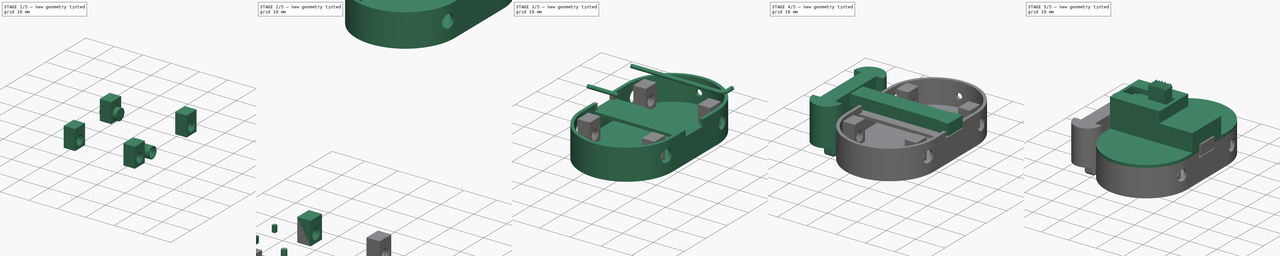
[diagram: build sequence overview — one tinted view per stage of 5, left to right]
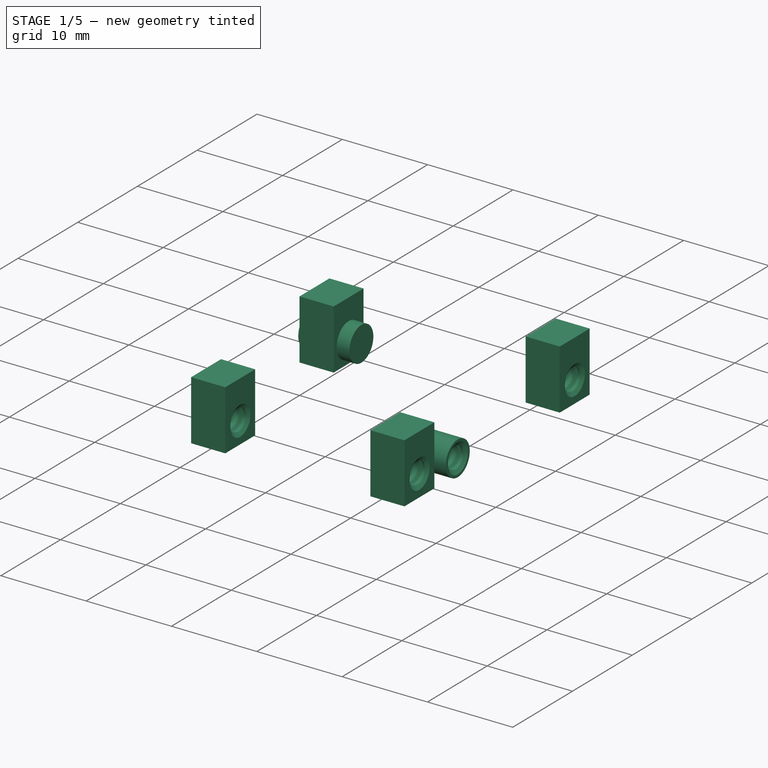
[diagram: stage 1 of 5 — iso view after this stage's code; geometry added in this stage tinted green]
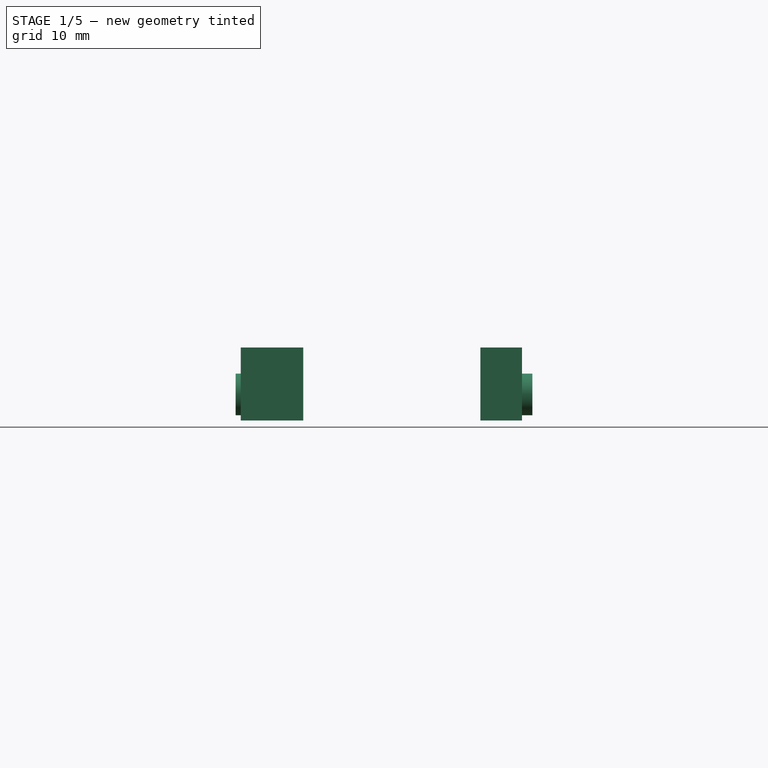
[diagram: stage 1 of 5 — front view after this stage's code; geometry added in this stage tinted green]
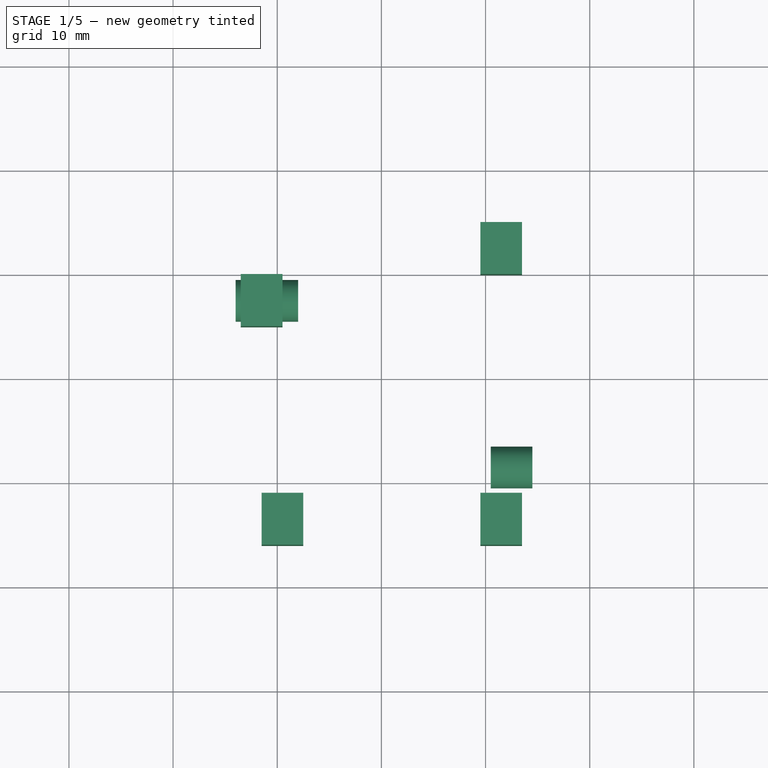
[diagram: stage 1 of 5 — top view after this stage's code; geometry added in this stage tinted green]
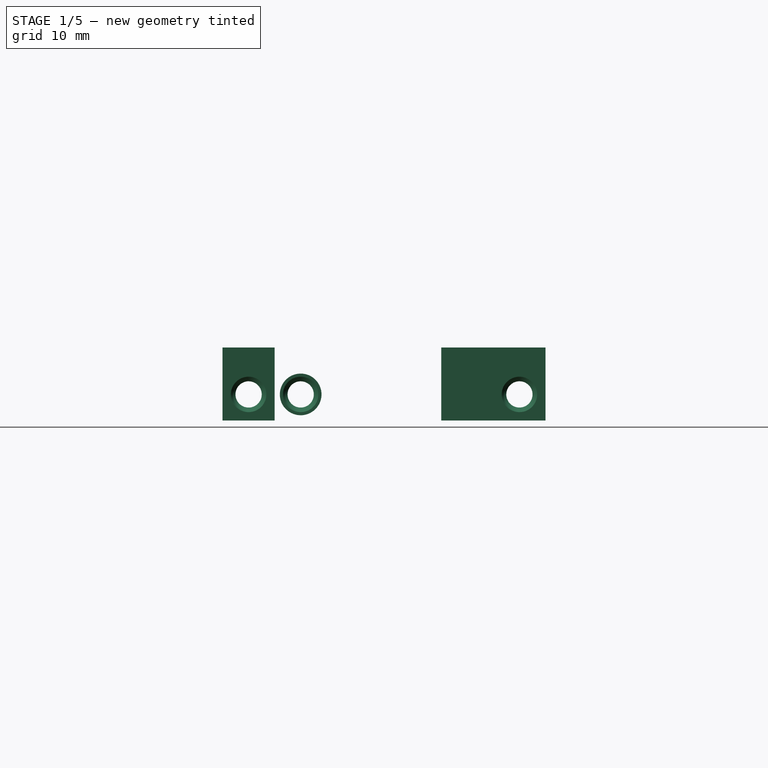
[diagram: stage 1 of 5 — right view after this stage's code; geometry added in this stage tinted green]
FCSTD DOCUMENT  (FreeCAD 0.16RUnknown)
Label: Diseño_superior1
License: All rights reserved
LicenseURL: http://en.wikipedia.org/wiki/All_rights_reserved
objects: Part::Cut×33, Part::Cylinder×29, Part::Box×28, Sketcher::SketchObject×17, Part::MultiFuse×16, Part::Sweep×8, Part::Fillet×8, PartDesign::Revolution×4, Part::Helix×4, Part::Chamfer×3, PartDesign::Pad×1
note: 156 computed .brp shape members not serialized (recipe doc carries the construction recipe); baked Part::Feature solids carry a one-line shape summary decoded from their .brp

FEATURE [Part::Box] Box058  label="Cubo058"
  Height = 7
  Length = 4
  Placement = pos=(-13.5,-5,-7) rot=(0,0,1;0rad)
  Width = 5
FEATURE [Part::Cylinder] Cylinder054  label="Cilindro054"
  Angle = 360
  Height = 6
  Placement = pos=(-14,-2.5,-4.5) rot=(0,1,0;1.5708rad)
  Radius = 2
FEATURE [Sketcher::SketchObject] Sketch038
  Placement = pos=(0,0,0) rot=(1,0,0;1.5708rad)
  sketch-geometry (6):
    g0: LineSegment StartX=1.7 StartY=0 StartZ=0 EndX=1.26 EndY=0.254034 EndZ=0
    g1: LineSegment StartX=1.26 StartY=0.254034 StartZ=0 EndX=1.26 EndY=3.7451 EndZ=0
    g2: LineSegment StartX=1.26 StartY=3.7451 StartZ=0 EndX=1.7 EndY=3.99913 EndZ=0
    g3: LineSegment StartX=1.7 StartY=3.99913 StartZ=0 EndX=2 EndY=3.99913 EndZ=0
    g4: LineSegment StartX=2 StartY=3.99913 StartZ=0 EndX=2 EndY=0 EndZ=0
    g5: LineSegment StartX=2 StartY=0 StartZ=0 EndX=1.7 EndY=0 EndZ=0
  constraints (17):
    c: PointOnObject(g0,g-1)
    c: Coincident(g0,g1)
    c: Vertical(g1)
    c: Coincident(g1,g2)
    c: Coincident(g2,g3)
    c: Horizontal(g3)
    c: Coincident(g3,g4)
    c: PointOnObject(g4,g-1)
    c: Vertical(g4)
    c: Coincident(g4,g5)
    c: Coincident(g5,g0)
    c: Angle(g2,g3) = 2.61799
    c: Angle(g5,g0) = 2.61799
    c: Equal(g0,g2)
    c: DistanceX(g-1,g1) = 1.26
    c: DistanceX(g-1,g2) = 1.7
    c: DistanceX(g-1,g3) = 2
FEATURE [PartDesign::Revolution] Revolution002
  Angle = 360
  Axis = (0,0,1)
  Base = (0,0,0)
  Placement = pos=(0,0,0) rot=(1,0,0;1.5708rad)
  ReferenceAxis = -> Sketch038 [V_Axis]
  Reversed = true
  Sketch = -> Sketch038
FEATURE [Part::Helix] Helix019  label="Espiral019"
  Angle = 0
  Height = 5
  LocalCoord = 0
  Pitch = 1
  Radius = 1.25
  Style = 1
FEATURE [Sketcher::SketchObject] Sketch039
  Placement = pos=(0,0,0) rot=(1,0,0;1.5708rad)
  sketch-geometry (3):
    g0: LineSegment StartX=1.25 StartY=-0.259808 StartZ=0 EndX=1.25 EndY=0.259808 EndZ=0
    g1: LineSegment StartX=1.25 StartY=0.259808 StartZ=0 EndX=1.7 EndY=0 EndZ=0
    g2: LineSegment StartX=1.7 StartY=0 StartZ=0 EndX=1.25 EndY=-0.259808 EndZ=0
  constraints (9):
    c: Vertical(g0)
    c: Coincident(g0,g1)
    c: PointOnObject(g1,g-1)
    c: Coincident(g1,g2)
    c: Coincident(g2,g0)
    c: Angle(g1,g2) = 1.0472
    c: Equal(g1,g2)
    c: DistanceX(g-1,g0) = 1.25
    c: DistanceX(g-1,g1) = 1.7
FEATURE [Part::Sweep] Sweep020
  Frenet = true
  Sections = -> [Sketch039]
  Solid = true
  Spine = -> Helix019
  Transition = 1
FEATURE [Part::Cut] Cut079
  Base = -> Revolution002
  Placement = pos=(10.5,-18.5,-4.5) rot=(0,1,0;1.5708rad)
  Tool = -> Sweep020
FEATURE [Part::Box] Box059  label="Cubo059"
  Height = 7
  Length = 4
  Placement = pos=(-13.5,-5,-7) rot=(0,0,1;0rad)
  Width = 5
FEATURE [Part::Cylinder] Cylinder055  label="Cilindro055"
  Angle = 360
  Height = 6
  Placement = pos=(-14,-2.5,-4.5) rot=(0,1,0;1.5708rad)
  Radius = 2
FEATURE [Part::Cut] Cut080
  Base = -> Box059
  Placement = pos=(24,-16,0) rot=(0,0,1;0rad)
  Tool = -> Cylinder055
FEATURE [Sketcher::SketchObject] Sketch040
  Placement = pos=(0,0,0) rot=(1,0,0;1.5708rad)
  sketch-geometry (6):
    g0: LineSegment StartX=1.7 StartY=0 StartZ=0 EndX=1.26 EndY=0.254034 EndZ=0
    g1: LineSegment StartX=1.26 StartY=0.254034 StartZ=0 EndX=1.26 EndY=3.7451 EndZ=0
    g2: LineSegment StartX=1.26 StartY=3.7451 StartZ=0 EndX=1.7 EndY=3.99913 EndZ=0
    g3: LineSegment StartX=1.7 StartY=3.99913 StartZ=0 EndX=2 EndY=3.99913 EndZ=0
    g4: LineSegment StartX=2 StartY=3.99913 StartZ=0 EndX=2 EndY=0 EndZ=0
    g5: LineSegment StartX=2 StartY=0 StartZ=0 EndX=1.7 EndY=0 EndZ=0
  constraints (17):
    c: PointOnObject(g0,g-1)
    c: Coincident(g0,g1)
    c: Vertical(g1)
    c: Coincident(g1,g2)
    c: Coincident(g2,g3)
    c: Horizontal(g3)
    c: Coincident(g3,g4)
    c: PointOnObject(g4,g-1)
    c: Vertical(g4)
    c: Coincident(g4,g5)
    c: Coincident(g5,g0)
    c: Angle(g2,g3) = 2.61799
    c: Angle(g5,g0) = 2.61799
    c: Equal(g0,g2)
    c: DistanceX(g-1,g1) = 1.26
    c: DistanceX(g-1,g2) = 1.7
    c: DistanceX(g-1,g3) = 2
FEATURE [PartDesign::Revolution] Revolution014
  Angle = 360
  Axis = (0,0,1)
  Base = (0,0,0)
  Placement = pos=(0,0,0) rot=(1,0,0;1.5708rad)
  ReferenceAxis = -> Sketch040 [V_Axis]
  Reversed = true
  Sketch = -> Sketch040
FEATURE [Part::Helix] Helix020  label="Espiral020"
  Angle = 0
  Height = 5
  LocalCoord = 0
  Pitch = 1
  Radius = 1.25
  Style = 1
FEATURE [Sketcher::SketchObject] Sketch041
  Placement = pos=(0,0,0) rot=(1,0,0;1.5708rad)
  sketch-geometry (3):
    g0: LineSegment StartX=1.25 StartY=-0.259808 StartZ=0 EndX=1.25 EndY=0.259808 EndZ=0
    g1: LineSegment StartX=1.25 StartY=0.259808 StartZ=0 EndX=1.7 EndY=0 EndZ=0
    g2: LineSegment StartX=1.7 StartY=0 StartZ=0 EndX=1.25 EndY=-0.259808 EndZ=0
  constraints (9):
    c: Vertical(g0)
    c: Coincident(g0,g1)
    c: PointOnObject(g1,g-1)
    c: Coincident(g1,g2)
    c: Coincident(g2,g0)
    c: Angle(g1,g2) = 1.0472
    c: Equal(g1,g2)
    c: DistanceX(g-1,g0) = 1.25
    c: DistanceX(g-1,g1) = 1.7
FEATURE [Part::Sweep] Sweep021
  Frenet = true
  Sections = -> [Sketch041]
  Solid = true
  Spine = -> Helix020
  Transition = 1
FEATURE [Part::Cut] Cut081
  Base = -> Revolution014
  Placement = pos=(10.5,-18.5,-4.5) rot=(0,1,0;1.5708rad)
  Tool = -> Sweep021
FEATURE [Part::MultiFuse] Fusion002034
  Placement = pos=(-22,-5,0) rot=(0,0,1;0rad)
  Shapes = -> [Cut080,Cut081]
FEATURE [Part::Box] Box060  label="Cubo060"
  Height = 7
  Length = 4
  Placement = pos=(-13.5,-5,-7) rot=(0,0,1;0rad)
  Width = 5
FEATURE [Part::Cylinder] Cylinder056  label="Cilindro056"
  Angle = 360
  Height = 6
  Placement = pos=(-14,-2.5,-4.5) rot=(0,1,0;1.5708rad)
  Radius = 2
FEATURE [Part::Cut] Cut082
  Base = -> Box060
  Placement = pos=(24,-16,0) rot=(0,0,1;0rad)
  Tool = -> Cylinder056
FEATURE [Sketcher::SketchObject] Sketch042
  Placement = pos=(0,0,0) rot=(1,0,0;1.5708rad)
  sketch-geometry (6):
    g0: LineSegment StartX=1.7 StartY=0 StartZ=0 EndX=1.26 EndY=0.254034 EndZ=0
    g1: LineSegment StartX=1.26 StartY=0.254034 StartZ=0 EndX=1.26 EndY=3.7451 EndZ=0
    g2: LineSegment StartX=1.26 StartY=3.7451 StartZ=0 EndX=1.7 EndY=3.99913 EndZ=0
    g3: LineSegment StartX=1.7 StartY=3.99913 StartZ=0 EndX=2 EndY=3.99913 EndZ=0
    g4: LineSegment StartX=2 StartY=3.99913 StartZ=0 EndX=2 EndY=0 EndZ=0
    g5: LineSegment StartX=2 StartY=0 StartZ=0 EndX=1.7 EndY=0 EndZ=0
  constraints (17):
    c: PointOnObject(g0,g-1)
    c: Coincident(g0,g1)
    c: Vertical(g1)
    c: Coincident(g1,g2)
    c: Coincident(g2,g3)
    c: Horizontal(g3)
    c: Coincident(g3,g4)
    c: PointOnObject(g4,g-1)
    c: Vertical(g4)
    c: Coincident(g4,g5)
    c: Coincident(g5,g0)
    c: Angle(g2,g3) = 2.61799
    c: Angle(g5,g0) = 2.61799
    c: Equal(g0,g2)
    c: DistanceX(g-1,g1) = 1.26
    c: DistanceX(g-1,g2) = 1.7
    c: DistanceX(g-1,g3) = 2
FEATURE [PartDesign::Revolution] Revolution015
  Angle = 360
  Axis = (0,0,1)
  Base = (0,0,0)
  Placement = pos=(0,0,0) rot=(1,0,0;1.5708rad)
  ReferenceAxis = -> Sketch042 [V_Axis]
  Reversed = true
  Sketch = -> Sketch042
FEATURE [Part::Helix] Helix021  label="Espiral021"
  Angle = 0
  Height = 5
  LocalCoord = 0
  Pitch = 1
  Radius = 1.25
  Style = 1
FEATURE [Sketcher::SketchObject] Sketch043
  Placement = pos=(0,0,0) rot=(1,0,0;1.5708rad)
  sketch-geometry (3):
    g0: LineSegment StartX=1.25 StartY=-0.259808 StartZ=0 EndX=1.25 EndY=0.259808 EndZ=0
    g1: LineSegment StartX=1.25 StartY=0.259808 StartZ=0 EndX=1.7 EndY=0 EndZ=0
    g2: LineSegment StartX=1.7 StartY=0 StartZ=0 EndX=1.25 EndY=-0.259808 EndZ=0
  constraints (9):
    c: Vertical(g0)
    c: Coincident(g0,g1)
    c: PointOnObject(g1,g-1)
    c: Coincident(g1,g2)
    c: Coincident(g2,g0)
    c: Angle(g1,g2) = 1.0472
    c: Equal(g1,g2)
    c: DistanceX(g-1,g0) = 1.25
    c: DistanceX(g-1,g1) = 1.7
FEATURE [Part::Sweep] Sweep022
  Frenet = true
  Sections = -> [Sketch043]
  Solid = true
  Spine = -> Helix021
  Transition = 1
FEATURE [Part::Cut] Cut083
  Base = -> Revolution015
  Placement = pos=(10.5,-18.5,-4.5) rot=(0,1,0;1.5708rad)
  Tool = -> Sweep022
FEATURE [Part::MultiFuse] Fusion002035
  Placement = pos=(-1,21,0) rot=(0,0,1;0rad)
  Shapes = -> [Cut082,Cut083]
FEATURE [Part::Box] Box061  label="Cubo061"
  Height = 7
  Length = 4
  Placement = pos=(-13.5,-5,-7) rot=(0,0,1;0rad)
  Width = 5
FEATURE [Part::Cylinder] Cylinder057  label="Cilindro057"
  Angle = 360
  Height = 6
  Placement = pos=(-14,-2.5,-4.5) rot=(0,1,0;1.5708rad)
  Radius = 2
FEATURE [Part::Cut] Cut084
  Base = -> Box061
  Placement = pos=(24,-16,0) rot=(0,0,1;0rad)
  Tool = -> Cylinder057
FEATURE [Sketcher::SketchObject] Sketch044
  Placement = pos=(0,0,0) rot=(1,0,0;1.5708rad)
  sketch-geometry (6):
    g0: LineSegment StartX=1.7 StartY=0 StartZ=0 EndX=1.26 EndY=0.254034 EndZ=0
    g1: LineSegment StartX=1.26 StartY=0.254034 StartZ=0 EndX=1.26 EndY=3.7451 EndZ=0
    g2: LineSegment StartX=1.26 StartY=3.7451 StartZ=0 EndX=1.7 EndY=3.99913 EndZ=0
    g3: LineSegment StartX=1.7 StartY=3.99913 StartZ=0 EndX=2 EndY=3.99913 EndZ=0
    g4: LineSegment StartX=2 StartY=3.99913 StartZ=0 EndX=2 EndY=0 EndZ=0
    g5: LineSegment StartX=2 StartY=0 StartZ=0 EndX=1.7 EndY=0 EndZ=0
  constraints (17):
    c: PointOnObject(g0,g-1)
    c: Coincident(g0,g1)
    c: Vertical(g1)
    c: Coincident(g1,g2)
    c: Coincident(g2,g3)
    c: Horizontal(g3)
    c: Coincident(g3,g4)
    c: PointOnObject(g4,g-1)
    c: Vertical(g4)
    c: Coincident(g4,g5)
    c: Coincident(g5,g0)
    c: Angle(g2,g3) = 2.61799
    c: Angle(g5,g0) = 2.61799
    c: Equal(g0,g2)
    c: DistanceX(g-1,g1) = 1.26
    c: DistanceX(g-1,g2) = 1.7
    c: DistanceX(g-1,g3) = 2
FEATURE [PartDesign::Revolution] Revolution016
  Angle = 360
  Axis = (0,0,1)
  Base = (0,0,0)
  Placement = pos=(0,0,0) rot=(1,0,0;1.5708rad)
  ReferenceAxis = -> Sketch044 [V_Axis]
  Reversed = true
  Sketch = -> Sketch044
FEATURE [Part::Helix] Helix022  label="Espiral022"
  Angle = 0
  Height = 5
  LocalCoord = 0
  Pitch = 1
  Radius = 1.25
  Style = 1
FEATURE [Sketcher::SketchObject] Sketch045
  Placement = pos=(0,0,0) rot=(1,0,0;1.5708rad)
  sketch-geometry (3):
    g0: LineSegment StartX=1.25 StartY=-0.259808 StartZ=0 EndX=1.25 EndY=0.259808 EndZ=0
    g1: LineSegment StartX=1.25 StartY=0.259808 StartZ=0 EndX=1.7 EndY=0 EndZ=0
    g2: LineSegment StartX=1.7 StartY=0 StartZ=0 EndX=1.25 EndY=-0.259808 EndZ=0
  constraints (9):
    c: Vertical(g0)
    c: Coincident(g0,g1)
    c: PointOnObject(g1,g-1)
    c: Coincident(g1,g2)
    c: Coincident(g2,g0)
    c: Angle(g1,g2) = 1.0472
    c: Equal(g1,g2)
    c: DistanceX(g-1,g0) = 1.25
    c: DistanceX(g-1,g1) = 1.7
FEATURE [Part::Sweep] Sweep023
  Frenet = true
  Sections = -> [Sketch045]
  Solid = true
  Spine = -> Helix022
  Transition = 1
FEATURE [Part::Cut] Cut085
  Base = -> Revolution016
  Placement = pos=(10.5,-18.5,-4.5) rot=(0,1,0;1.5708rad)
  Tool = -> Sweep023
FEATURE [Part::MultiFuse] Fusion002036
  Placement = pos=(-1,-5,0) rot=(0,0,1;0rad)
  Shapes = -> [Cut084,Cut085]
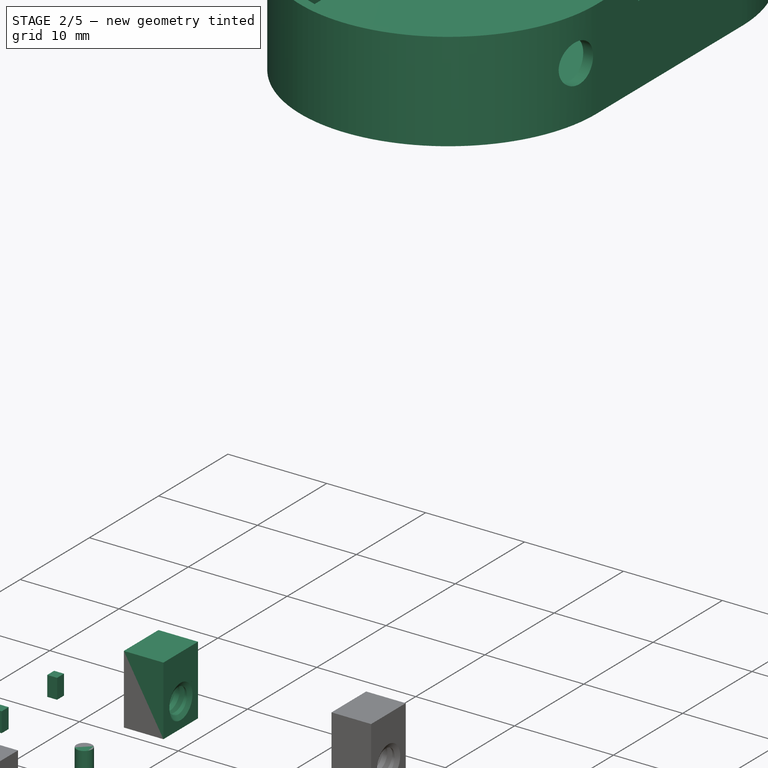
[diagram: stage 2 of 5 — iso view after this stage's code; geometry added in this stage tinted green]
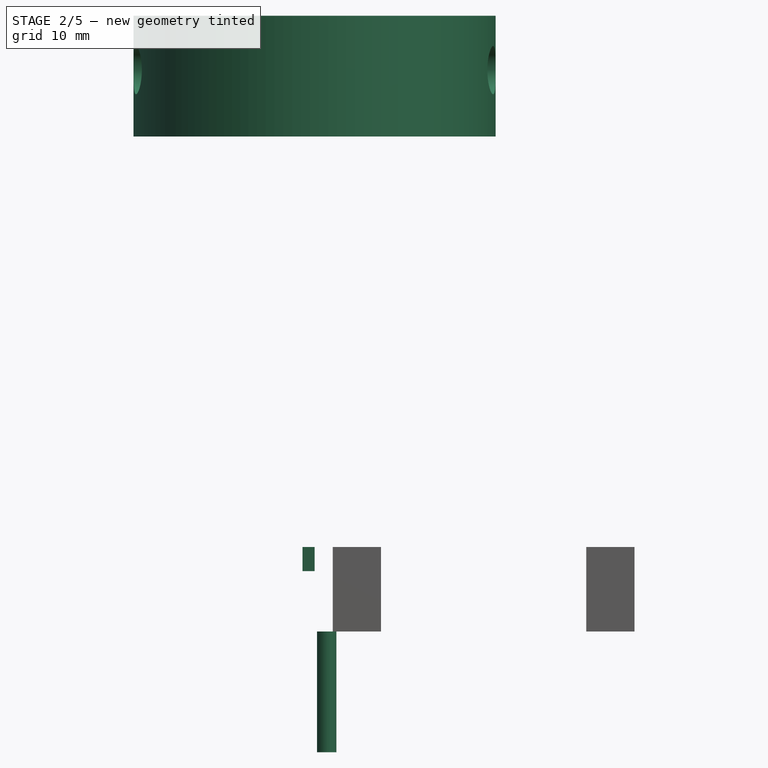
[diagram: stage 2 of 5 — front view after this stage's code; geometry added in this stage tinted green]
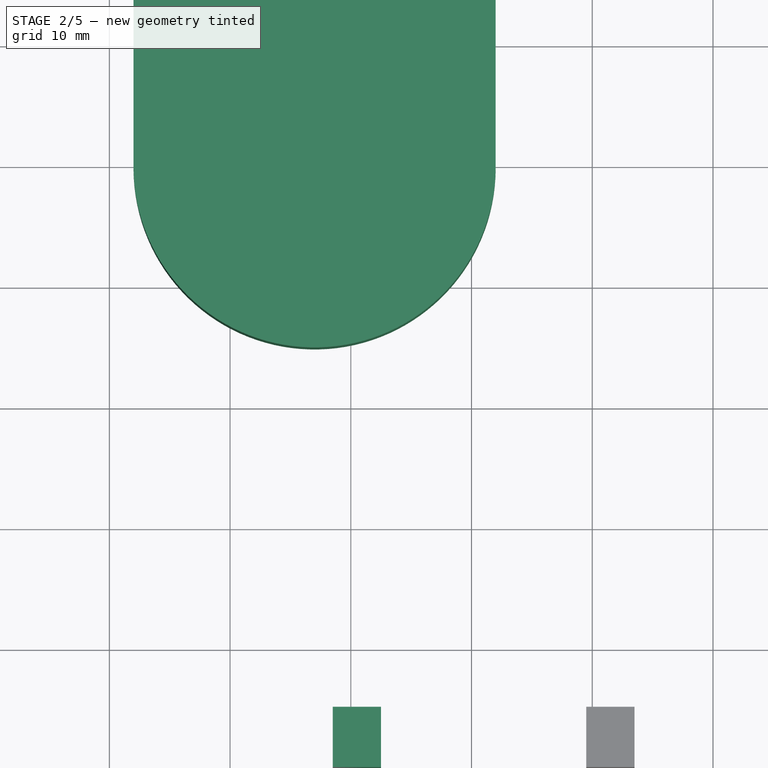
[diagram: stage 2 of 5 — top view after this stage's code; geometry added in this stage tinted green]
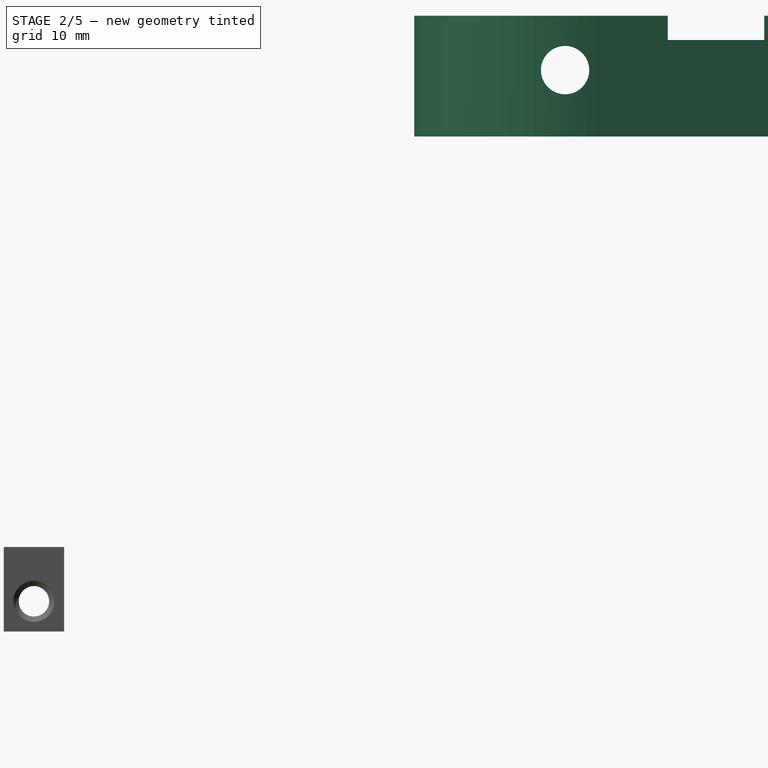
[diagram: stage 2 of 5 — right view after this stage's code; geometry added in this stage tinted green]
FEATURE [Part::Cylinder] Cylinder  label="Cilindro"
  Angle = 180
  Height = 10
  Placement = pos=(13,70,-34) rot=(0,1,0;3.14159rad)
  Radius = 15
FEATURE [Part::Box] Box  label="Cubo"
  Height = 10
  Length = 30
  Placement = pos=(-2,49,-44) rot=(0,0,1;0rad)
  Width = 21
FEATURE [Part::Cylinder] Cylinder001  label="Cilindro001"
  Angle = 180
  Height = 10
  Placement = pos=(16,49,-34) rot=(1,0,0;3.14159rad)
  Radius = 15
FEATURE [Part::Box] Box001  label="Cubo001"
  Height = 8
  Length = 28
  Placement = pos=(-1,49,-44) rot=(0,0,1;0rad)
  Width = 21
FEATURE [Part::Cut] Cut
  Base = -> Box
  Tool = -> Box001
FEATURE [Part::Cylinder] Cylinder002  label="Cilindro002"
  Angle = 180
  Height = 8
  Placement = pos=(16,49,-36) rot=(1,0,0;3.14159rad)
  Radius = 14
FEATURE [Part::Cut] Cut001
  Base = -> Cylinder001
  Placement = pos=(-3,0,0) rot=(0,0,1;0rad)
  Tool = -> Cylinder002
FEATURE [Part::Cylinder] Cylinder003  label="Cilindro003"
  Angle = 180
  Height = 8
  Placement = pos=(13,70,-36) rot=(0,1,0;3.14159rad)
  Radius = 14
FEATURE [Part::Cut] Cut002
  Base = -> Cylinder
  Tool = -> Cylinder003
FEATURE [Part::MultiFuse] Fusion
  Placement = pos=(0,0,0) rot=(0,1,0;3.14159rad)
  Shapes = -> [Cut,Cut001,Cut002]
FEATURE [Part::Box] Box012  label="Cubo012"
  Height = 2
  Length = 33
  Placement = pos=(-30,55,42) rot=(0,0,1;0rad)
  Width = 8
FEATURE [Part::Cut] Cut003
  Base = -> Fusion
  Tool = -> Box012
FEATURE [Part::Cylinder] Cylinder028  label="Cilindro028"
  Angle = 360
  Height = 10
  Placement = pos=(-29,72.5,39.5) rot=(0,1,0;1.5708rad)
  Radius = 2
FEATURE [Part::Cylinder] Cylinder029  label="Cilindro029"
  Angle = 360
  Height = 10
  Placement = pos=(-29,46.5,39.5) rot=(0,1,0;1.5708rad)
  Radius = 2
FEATURE [Part::Cut] Cut040
  Base = -> Cut003
  Tool = -> Cylinder028
FEATURE [Part::Cylinder] Cylinder030  label="Cilindro030"
  Angle = 360
  Height = 10
  Placement = pos=(-5,46.5,39.5) rot=(0,1,0;1.5708rad)
  Radius = 2
FEATURE [Part::Cylinder] Cylinder031  label="Cilindro031"
  Angle = 360
  Height = 10
  Placement = pos=(-5,72.5,39.5) rot=(0,1,0;1.5708rad)
  Radius = 2
FEATURE [Part::Cut] Cut041
  Base = -> Cut040
  Tool = -> Cylinder030
FEATURE [Part::Cut] Cut042
  Base = -> Cut041
  Tool = -> Cylinder031
FEATURE [Part::Cut] Cut043
  Base = -> Cut042
  Tool = -> Cylinder029
FEATURE [Part::Cylinder] Cylinder037  label="Cilindro037"
  Angle = 360
  Height = 10
  Placement = pos=(-14,89,39.5) rot=(1,0,0;1.5708rad)
  Radius = 1
FEATURE [Part::Box] Box056  label="Cubo056"
  Height = 2
  Length = 1
  Placement = pos=(-14,-7.5,-2) rot=(0,0,1;0rad)
  Width = 1
FEATURE [Part::Box] Box057  label="Cubo057"
  Height = 2
  Length = 1
  Placement = pos=(-14,-15.5,-2) rot=(0,0,1;0rad)
  Width = 1
FEATURE [Part::Cylinder] Cylinder052  label="Cilindro052"
  Angle = 360
  Height = 10
  Placement = pos=(-12,-5,-17) rot=(0,0,1;0rad)
  Radius = 0.8
FEATURE [Part::Cut] Cut078
  Base = -> Box058
  Placement = pos=(24,-16,0) rot=(0,0,1;0rad)
  Tool = -> Cylinder054
FEATURE [Part::MultiFuse] Fusion002033
  Placement = pos=(-22,21,0) rot=(0,0,1;0rad)
  Shapes = -> [Cut078,Cut079]
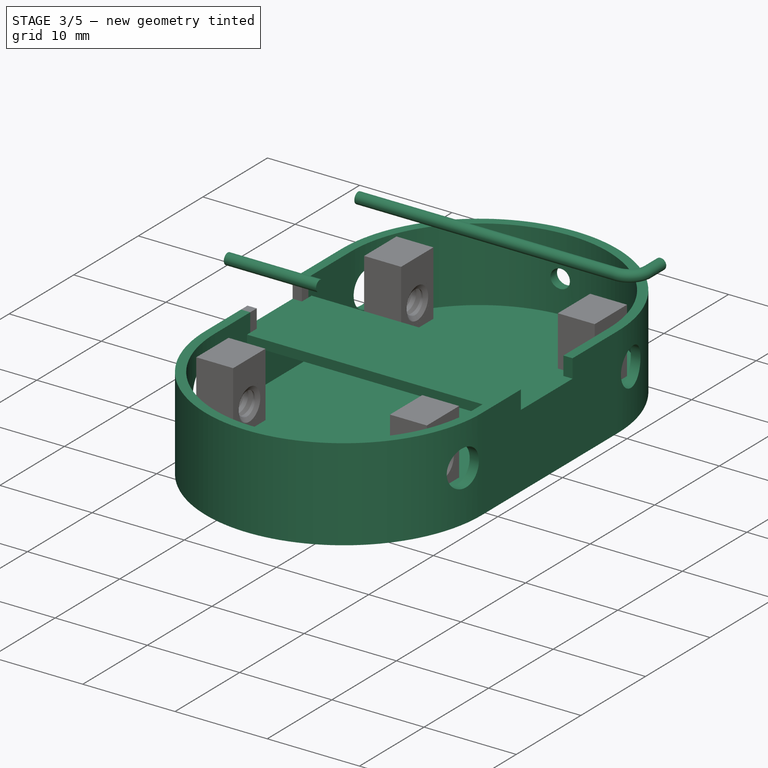
[diagram: stage 3 of 5 — iso view after this stage's code; geometry added in this stage tinted green]
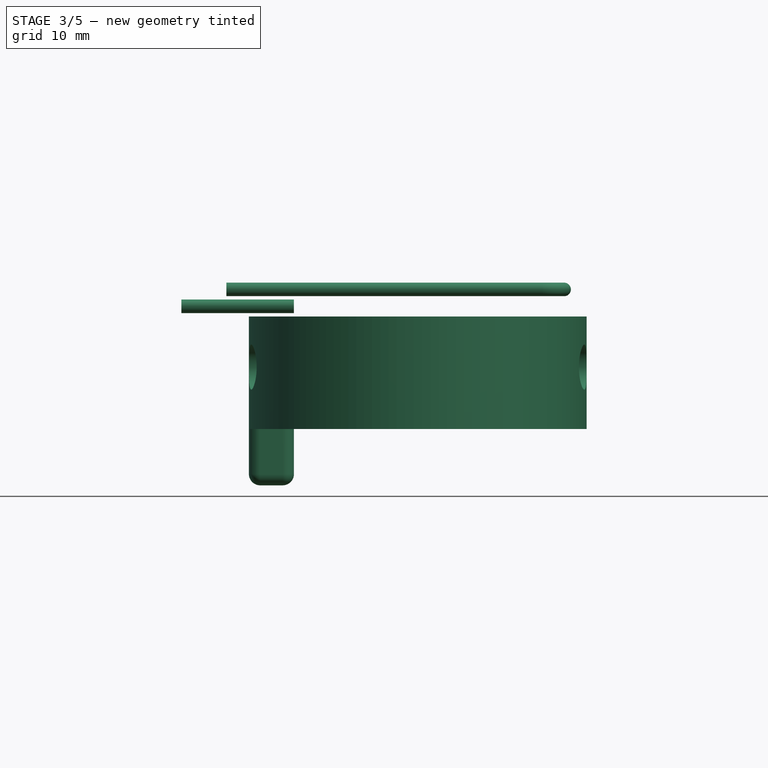
[diagram: stage 3 of 5 — front view after this stage's code; geometry added in this stage tinted green]
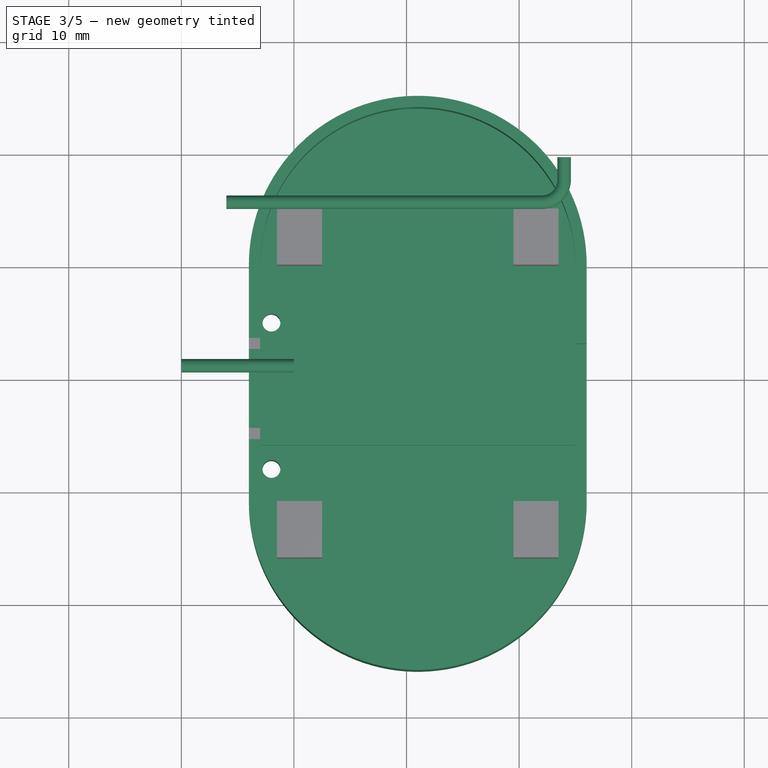
[diagram: stage 3 of 5 — top view after this stage's code; geometry added in this stage tinted green]
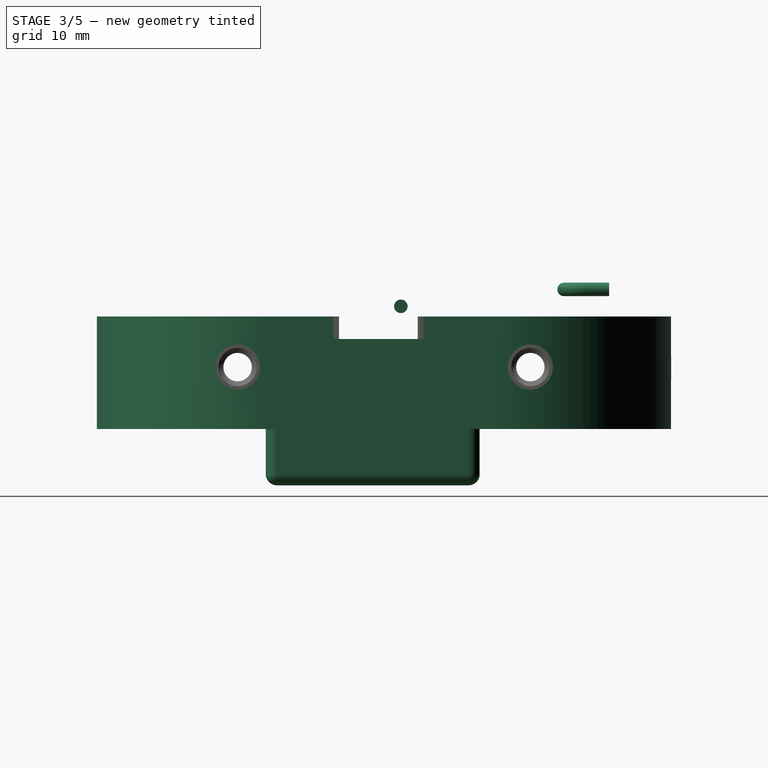
[diagram: stage 3 of 5 — right view after this stage's code; geometry added in this stage tinted green]
FEATURE [Part::Box] Box011  label="Cubo011"
  Height = 3
  Length = 28
  Placement = pos=(-27,54,41) rot=(0,0,1;0rad)
  Width = 10
FEATURE [Part::Box] Box013  label="Cubo013"
  Height = 2
  Length = 28
  Placement = pos=(-27,54,42) rot=(0,0,1;0rad)
  Width = 10
FEATURE [Part::Cut] Cut004
  Base = -> Box011
  Tool = -> Box013
FEATURE [Part::Cylinder] Cylinder006  label="Cilindro006"
  Angle = 360
  Height = 28
  Placement = pos=(-15,3.4,2) rot=(0,1,0;1.5708rad)
  Radius = 0.6
FEATURE [Sketcher::SketchObject] Sketch002
  sketch-geometry (3):
    g0: LineSegment StartX=0 StartY=0 StartZ=0 EndX=2.00001 EndY=0 EndZ=0
    g1: LineSegment StartX=3.9994 StartY=1.99872 StartZ=0 EndX=3.9994 EndY=3.99963 EndZ=0
    g2: ArcOfCircle CenterX=1.99995 CenterY=1.99946 CenterZ=0 NormalX=0 NormalY=0 NormalZ=1 Radius=1.99946 StartAngle=4.71242 EndAngle=6.28282
  constraints (5):
    c: Coincident(g0,g-1)
    c: PointOnObject(g0,g-1)
    c: Vertical(g1)
    c: Coincident(g2,g1)
    c: Coincident(g2,g0)
FEATURE [Sketcher::SketchObject] Sketch004
  Placement = pos=(0,0,0) rot=(0.57735,0.57735,0.57735;2.0944rad)
  sketch-geometry (1):
    g0: Circle CenterX=0 CenterY=0 CenterZ=0 NormalX=0 NormalY=0 NormalZ=1 Radius=0.6
  constraints (2):
    c: Coincident(g0,g-1)
    c: Radius(g0) = 0.6
FEATURE [Part::Sweep] Sweep
  Frenet = false
  Placement = pos=(11,3.4,2) rot=(-1,0,0;1.5708rad)
  Sections = -> [Sketch004]
  Solid = true
  Spine = -> Sketch002
  Transition = 1
FEATURE [Part::MultiFuse] Fusion002005
  Placement = pos=(-1,7.5,-1) rot=(1,0,0;1.5708rad)
  Shapes = -> [Cylinder006,Sweep]
FEATURE [Part::Cut] Cut058
  Base = -> Cut043
  Tool = -> Cylinder037
FEATURE [Part::MultiFuse] Fusion002022
  Placement = pos=(14,-70,-44) rot=(0,0,1;0rad)
  Shapes = -> [Cut004,Cut058]
FEATURE [Part::Cylinder] Cylinder046  label="Cilindro046"
  Angle = 360
  Height = 10
  Placement = pos=(-20,-9,0.9) rot=(0,1,0;1.5708rad)
  Radius = 0.6
FEATURE [Part::MultiFuse] Fusion002031
  Shapes = -> [Fusion002022,Box056,Box057]
FEATURE [Part::Box] Box020  label="Cubo020"
  Height = 5
  Length = 4
  Placement = pos=(-2,50,45) rot=(0,0,1;0rad)
  Width = 19
FEATURE [Part::Fillet] Fillet008
  Base = -> Box020
  Edges = 1 edges r=1: [Edge6]
FEATURE [Part::Fillet] Fillet009
  Base = -> Fillet008
  Edges = 1 edges r=1: [Edge15]
FEATURE [Part::Fillet] Fillet010
  Base = -> Fillet009
  Edges = 1 edges r=1: [Edge7]
FEATURE [Part::Fillet] Fillet011
  Base = -> Fillet010
  Edges = 1 edges r=1: [Edge3]
  Placement = pos=(-39,0,0) rot=(0,0,1;0rad)
FEATURE [Part::Cylinder] Cylinder047  label="Cilindro047"
  Angle = 360
  Height = 10
  Placement = pos=(-39,53,48) rot=(0,0,1;0rad)
  Radius = 0.75
FEATURE [Part::Cylinder] Cylinder048  label="Cilindro048"
  Angle = 360
  Height = 10
  Placement = pos=(-39,66,48) rot=(0,0,1;0rad)
  Radius = 0.75
FEATURE [Part::Cut] Cut065
  Base = -> Fillet011
  Tool = -> Cylinder047
FEATURE [Part::Cut] Cut066
  Base = -> Cut065
  Placement = pos=(-28,-70,35) rot=(0,1,0;3.14159rad)
  Tool = -> Cylinder048
FEATURE [Part::Cylinder] Cylinder050  label="Cilindro050"
  Angle = 360
  Height = 10
  Placement = pos=(11,-4,-17) rot=(0,0,1;0rad)
  Radius = 0.8
FEATURE [Part::Cylinder] Cylinder051  label="Cilindro051"
  Angle = 360
  Height = 10
  Placement = pos=(11,-17,-17) rot=(0,0,1;0rad)
  Radius = 0.8
FEATURE [Part::Cut] Cut069
  Base = -> Cut066
  Tool = -> Cylinder050
FEATURE [Part::Cut] Cut070
  Base = -> Cut069
  Placement = pos=(-23,-1,0) rot=(0,0,1;0rad)
  Tool = -> Cylinder051
FEATURE [Part::Cylinder] Cylinder053  label="Cilindro053"
  Angle = 360
  Height = 10
  Placement = pos=(-12,-18,-17) rot=(0,0,1;0rad)
  Radius = 0.8
FEATURE [Part::Cut] Cut076
  Base = -> Fusion002031
  Tool = -> Cylinder052
FEATURE [Part::Cut] Cut077
  Base = -> Cut076
  Tool = -> Cylinder053
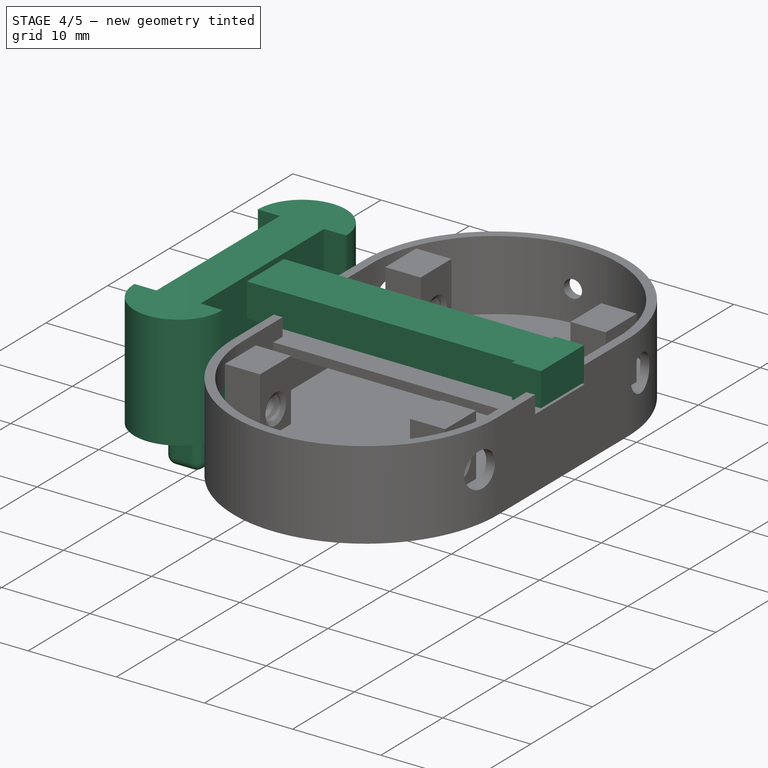
[diagram: stage 4 of 5 — iso view after this stage's code; geometry added in this stage tinted green]
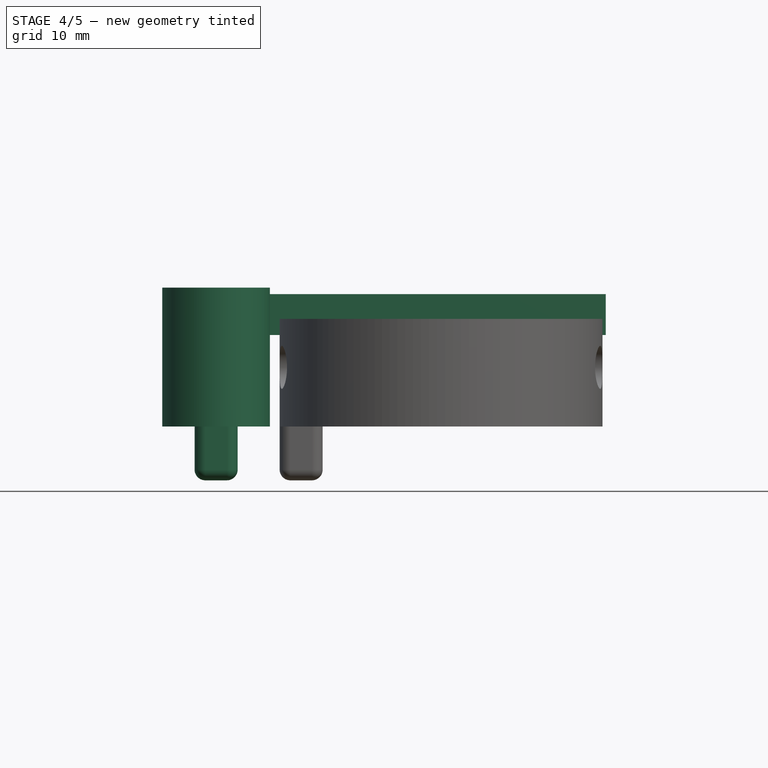
[diagram: stage 4 of 5 — front view after this stage's code; geometry added in this stage tinted green]
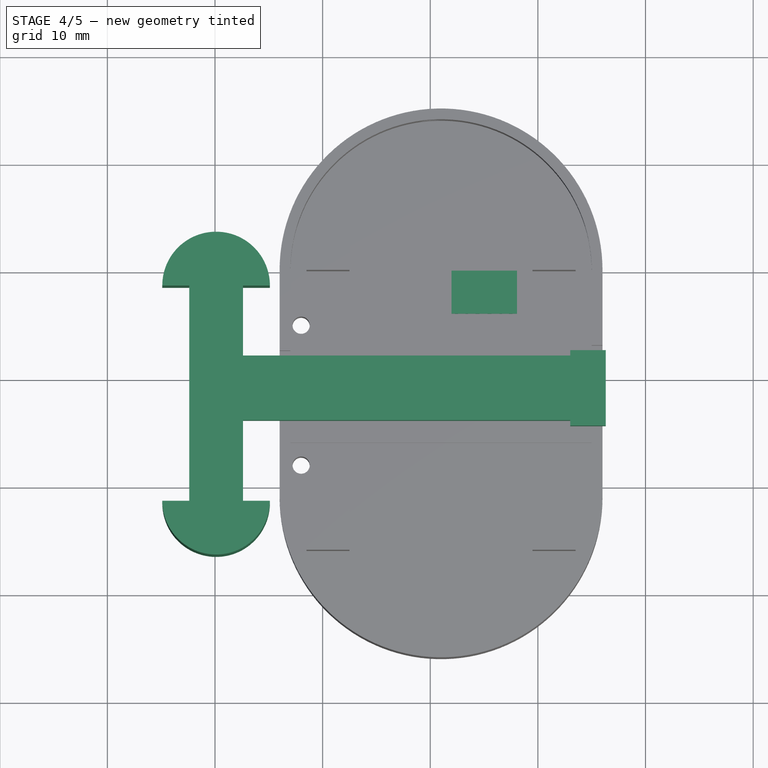
[diagram: stage 4 of 5 — top view after this stage's code; geometry added in this stage tinted green]
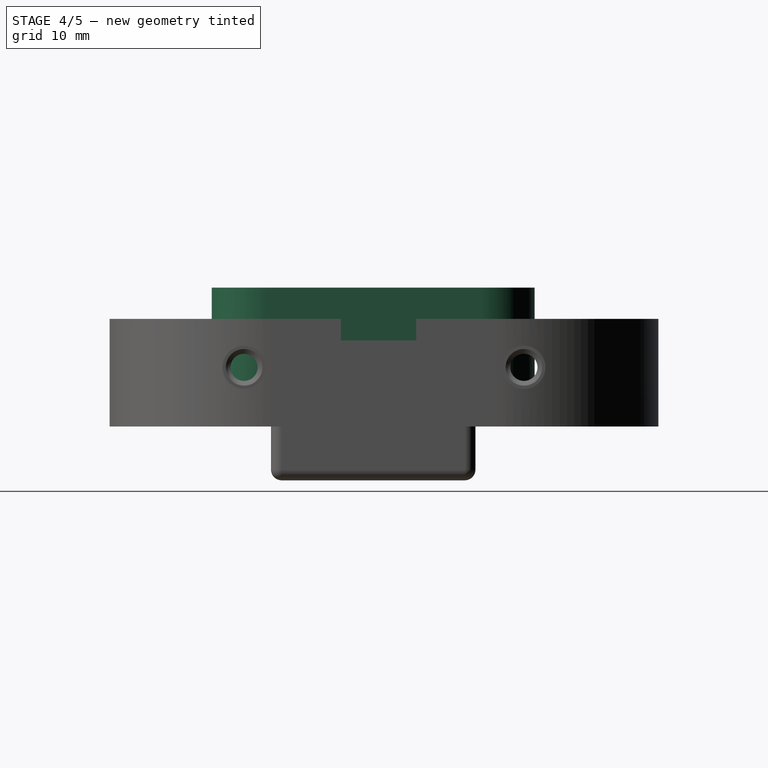
[diagram: stage 4 of 5 — right view after this stage's code; geometry added in this stage tinted green]
FEATURE [Part::Box] Box014  label="Cubo014"
  Height = 3.8
  Length = 31
  Placement = pos=(-19,0.5,0) rot=(0,0,1;0rad)
  Width = 6
FEATURE [Part::Box] Box015  label="Cubo015"
  Height = 3.8
  Length = 3.3
  Placement = pos=(12,0,0) rot=(0,0,1;0rad)
  Width = 7
FEATURE [Part::MultiFuse] Fusion002004
  Shapes = -> [Box014,Box015]
FEATURE [Part::Cut] Cut007
  Base = -> Fusion002004
  Placement = pos=(1,-14.5,-1.5) rot=(0,0,1;0rad)
  Tool = -> Fusion002005
FEATURE [Sketcher::SketchObject] Sketch
  Placement = pos=(0,0,0) rot=(1,0,0;1.5708rad)
  sketch-geometry (15):
    g0: LineSegment StartX=1.97462 StartY=-4.07912 StartZ=0 EndX=2.48592 EndY=-4.88456 EndZ=0
    g1: LineSegment StartX=2.48592 StartY=-4.88456 StartZ=0 EndX=2.9278 EndY=-4.03904 EndZ=0
    g2: LineSegment StartX=2.9278 StartY=-4.03904 StartZ=0 EndX=3.43199 EndY=-4.84464 EndZ=0
    g3: LineSegment StartX=3.43199 StartY=-4.84464 StartZ=0 EndX=3.87756 EndY=-4.0052 EndZ=0
    g4: LineSegment StartX=3.87756 StartY=-4.0052 StartZ=0 EndX=4.39855 EndY=-4.96392 EndZ=0
    g5: LineSegment StartX=4.39855 StartY=-4.96392 StartZ=0 EndX=4.96834 EndY=-4.03337 EndZ=0
    g6: LineSegment StartX=4.96834 StartY=-4.03337 StartZ=0 EndX=5.53248 EndY=-4.977 EndZ=0
    g7: LineSegment StartX=5.53248 StartY=-4.977 StartZ=0 EndX=6.06762 EndY=-4.01662 EndZ=0
    g8: LineSegment StartX=6.06762 StartY=-4.01662 StartZ=0 EndX=6.58875 EndY=-4.85016 EndZ=0
    g9: LineSegment StartX=6.58875 StartY=-4.85016 StartZ=0 EndX=7.05005 EndY=-3.98207 EndZ=0
    g10: LineSegment StartX=7.05005 StartY=-3.98207 StartZ=0 EndX=7.46801 EndY=-4.90009 EndZ=0
    g11: LineSegment StartX=7.46801 StartY=-4.90009 StartZ=0 EndX=8.05406 EndY=-4.07912 EndZ=0
    g12: LineSegment StartX=8.05406 StartY=-4.07912 StartZ=0 EndX=8.05406 EndY=-3.69393 EndZ=0
    g13: LineSegment StartX=8.05406 StartY=-3.69393 StartZ=0 EndX=1.97462 EndY=-3.69393 EndZ=0
    g14: LineSegment StartX=1.97462 StartY=-3.69393 StartZ=0 EndX=1.97462 EndY=-4.07912 EndZ=0
  constraints (31):
    c: Coincident(g0,g1)
    c: Coincident(g1,g2)
    c: Coincident(g2,g3)
    c: Coincident(g3,g4)
    c: Coincident(g4,g5)
    c: Coincident(g5,g6)
    c: Coincident(g6,g7)
    c: Coincident(g7,g8)
    c: Coincident(g8,g9)
    c: Coincident(g9,g10)
    c: Coincident(g10,g11)
    c: Coincident(g11,g12)
    c: Vertical(g12)
    c: Coincident(g12,g13)
    c: Coincident(g13,g14)
    c: Coincident(g14,g0)
    c: Vertical(g14)
    c: Equal(g11,g10)
    c: Angle(g11,g10) = 1.0472
    c: Equal(g9,g8)
    c: Angle(g9,g8) = 1.0472
    c: Angle(g7,g6) = 1.0472
    c: Equal(g6,g7)
    c: Equal(g4,g5)
    c: Angle(g5,g4) = 1.0472
    c: Equal(g2,g3)
    c: Angle(g3,g2) = 1.0472
    c: Equal(g0,g1)
    c: Angle(g1,g0) = 1.0472
    c: Equal(g14,g12)
    c: Angle(g14,g13) = 1.5708
FEATURE [PartDesign::Pad] Pad
  Length = 4
  Length2 = 100
  Placement = pos=(0,0,0) rot=(1,0,0;1.5708rad)
  Sketch = -> Sketch
  Type = 0
FEATURE [Part::Box] Box018  label="Cubo018"
  Height = 12.9
  Length = 5
  Placement = pos=(19,56,-4) rot=(0,0,1;0rad)
  Width = 20
FEATURE [Part::Cylinder] Cylinder018  label="Cilindro018"
  Angle = 180
  Height = 12.9
  Placement = pos=(21.5,76,-4) rot=(0,0,1;0rad)
  Radius = 5
FEATURE [Part::Cylinder] Cylinder019  label="Cilindro019"
  Angle = 180
  Height = 12.9
  Placement = pos=(21.5,56,8.9) rot=(1,0,0;3.14159rad)
  Radius = 5
FEATURE [Part::Box] Box019  label="Cubo019"
  Height = 5
  Length = 4
  Placement = pos=(-2,50,45) rot=(0,0,1;0rad)
  Width = 19
FEATURE [Part::Fillet] Fillet004
  Base = -> Box019
  Edges = 1 edges r=1: [Edge6]
FEATURE [Part::Fillet] Fillet005
  Base = -> Fillet004
  Edges = 1 edges r=1: [Edge15]
FEATURE [Part::Fillet] Fillet006
  Base = -> Fillet005
  Edges = 1 edges r=1: [Edge7]
FEATURE [Part::Fillet] Fillet007
  Base = -> Fillet006
  Edges = 1 edges r=1: [Edge3]
  Placement = pos=(-39,0,0) rot=(0,0,1;0rad)
FEATURE [Part::Cylinder] Cylinder042  label="Cilindro042"
  Angle = 360
  Height = 10
  Placement = pos=(-39,53,48) rot=(0,0,1;0rad)
  Radius = 0.75
FEATURE [Part::Cylinder] Cylinder043  label="Cilindro043"
  Angle = 360
  Height = 10
  Placement = pos=(-39,66,48) rot=(0,0,1;0rad)
  Radius = 0.75
FEATURE [Part::Cut] Cut062
  Base = -> Fillet007
  Tool = -> Cylinder042
FEATURE [Part::Cut] Cut063
  Base = -> Cut062
  Placement = pos=(60.5,6.5,-36.1) rot=(0,0,1;0rad)
  Tool = -> Cylinder043
FEATURE [Part::MultiFuse] Fusion002013
  Placement = pos=(42.4,-76.5,1) rot=(0,1,0;3.14159rad)
  Shapes = -> [Box018,Cylinder018,Cylinder019,Cut063]
FEATURE [Sketcher::SketchObject] Sketch013
  sketch-geometry (3):
    g0: LineSegment StartX=0 StartY=0 StartZ=0 EndX=2.00001 EndY=0 EndZ=0
    g1: LineSegment StartX=3.9994 StartY=1.99872 StartZ=0 EndX=3.9994 EndY=3.99963 EndZ=0
    g2: ArcOfCircle CenterX=1.99995 CenterY=1.99946 CenterZ=0 NormalX=0 NormalY=0 NormalZ=1 Radius=1.99946 StartAngle=4.71242 EndAngle=6.28282
  constraints (5):
    c: Coincident(g0,g-1)
    c: PointOnObject(g0,g-1)
    c: Vertical(g1)
    c: Coincident(g2,g1)
    c: Coincident(g2,g0)
FEATURE [Sketcher::SketchObject] Sketch014
  Placement = pos=(0,0,0) rot=(0.57735,0.57735,0.57735;2.0944rad)
  sketch-geometry (1):
    g0: Circle CenterX=0 CenterY=0 CenterZ=0 NormalX=0 NormalY=0 NormalZ=1 Radius=0.6
  constraints (2):
    c: Coincident(g0,g-1)
    c: Radius(g0) = 0.6
FEATURE [Part::Sweep] Sweep006
  Frenet = false
  Placement = pos=(18,-13,3) rot=(-1,0,0;1.5708rad)
  Sections = -> [Sketch014]
  Solid = true
  Spine = -> Sketch013
  Transition = 1
FEATURE [Sketcher::SketchObject] Sketch015
  sketch-geometry (3):
    g0: LineSegment StartX=0 StartY=0 StartZ=0 EndX=2.00001 EndY=0 EndZ=0
    g1: LineSegment StartX=3.9994 StartY=1.99872 StartZ=0 EndX=3.9994 EndY=3.99963 EndZ=0
    g2: ArcOfCircle CenterX=1.99995 CenterY=1.99946 CenterZ=0 NormalX=0 NormalY=0 NormalZ=1 Radius=1.99946 StartAngle=4.71242 EndAngle=6.28282
  constraints (5):
    c: Coincident(g0,g-1)
    c: PointOnObject(g0,g-1)
    c: Vertical(g1)
    c: Coincident(g2,g1)
    c: Coincident(g2,g0)
FEATURE [Sketcher::SketchObject] Sketch016
  Placement = pos=(0,0,0) rot=(0.57735,0.57735,0.57735;2.0944rad)
  sketch-geometry (1):
    g0: Circle CenterX=0 CenterY=0 CenterZ=0 NormalX=0 NormalY=0 NormalZ=1 Radius=0.6
  constraints (2):
    c: Coincident(g0,g-1)
    c: Radius(g0) = 0.6
FEATURE [Part::Sweep] Sweep007
  Frenet = false
  Placement = pos=(22,-13,0) rot=(0,1,0;1.5708rad)
  Sections = -> [Sketch016]
  Solid = true
  Spine = -> Sketch015
  Transition = 1
FEATURE [Sketcher::SketchObject] Sketch017
  sketch-geometry (3):
    g0: LineSegment StartX=0 StartY=0 StartZ=0 EndX=2.00001 EndY=0 EndZ=0
    g1: LineSegment StartX=3.9994 StartY=1.99872 StartZ=0 EndX=3.9994 EndY=3.99963 EndZ=0
    g2: ArcOfCircle CenterX=1.99995 CenterY=1.99946 CenterZ=0 NormalX=0 NormalY=0 NormalZ=1 Radius=1.99946 StartAngle=4.71242 EndAngle=6.28282
  constraints (5):
    c: Coincident(g0,g-1)
    c: PointOnObject(g0,g-1)
    c: Vertical(g1)
    c: Coincident(g2,g1)
    c: Coincident(g2,g0)
FEATURE [Sketcher::SketchObject] Sketch018
  Placement = pos=(0,0,0) rot=(0.57735,0.57735,0.57735;2.0944rad)
  sketch-geometry (1):
    g0: Circle CenterX=0 CenterY=0 CenterZ=0 NormalX=0 NormalY=0 NormalZ=1 Radius=0.6
  constraints (2):
    c: Coincident(g0,g-1)
    c: Radius(g0) = 0.6
FEATURE [Part::Sweep] Sweep008
  Frenet = false
  Placement = pos=(22,-8,-4) rot=(-0.577266,-0.577392,0.577392;2.0944rad)
  Sections = -> [Sketch018]
  Solid = true
  Spine = -> Sketch017
  Transition = 1
FEATURE [Part::Cylinder] Cylinder044  label="Cilindro044"
  Angle = 360
  Height = 2
  Placement = pos=(22,-8,-4) rot=(1,0,0;1.5708rad)
  Radius = 0.6
FEATURE [Part::Cylinder] Cylinder045  label="Cilindro045"
  Angle = 360
  Height = 10
  Placement = pos=(22,-4,-17) rot=(0,0,1;0rad)
  Radius = 0.6
FEATURE [Part::MultiFuse] Fusion002014
  Placement = pos=(-1.1,0,0) rot=(0,0,1;0rad)
  Shapes = -> [Sweep008,Cylinder045,Cylinder044,Sweep007,Sweep006]
FEATURE [Part::Cut] Cut064
  Base = -> Fusion002013
  Placement = pos=(1,-22,-2.1) rot=(0,0,1;3.14159rad)
  Tool = -> Fusion002014
FEATURE [Part::Cut] Cut075
  Base = -> Cut007
  Tool = -> Cylinder046
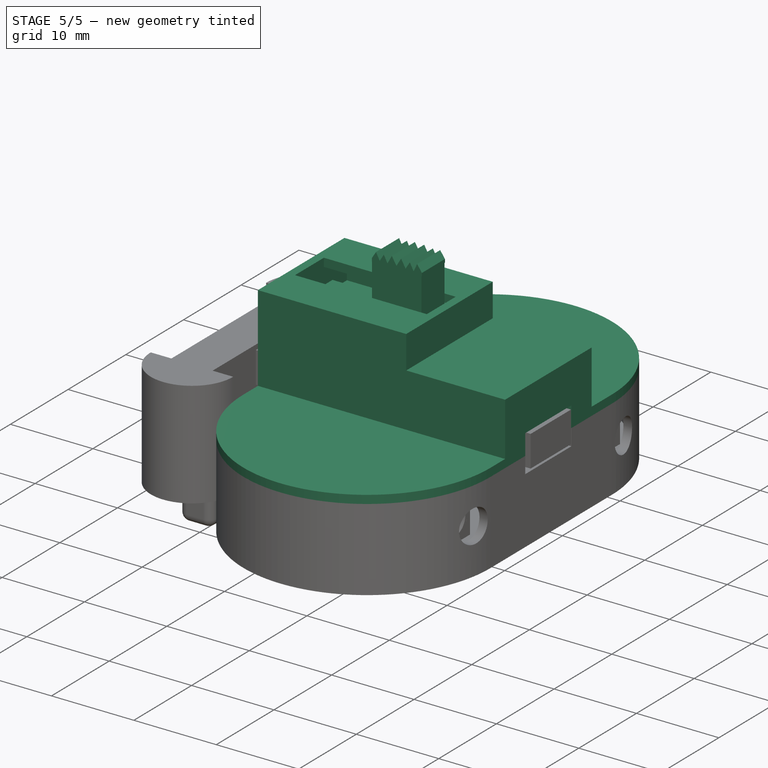
[diagram: stage 5 of 5 — iso view after this stage's code; geometry added in this stage tinted green]
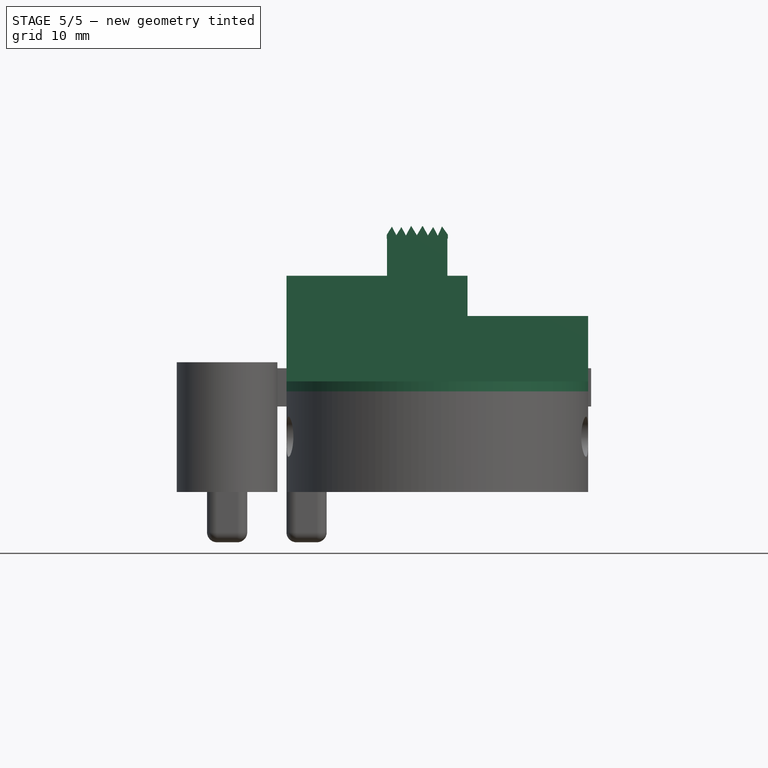
[diagram: stage 5 of 5 — front view after this stage's code; geometry added in this stage tinted green]
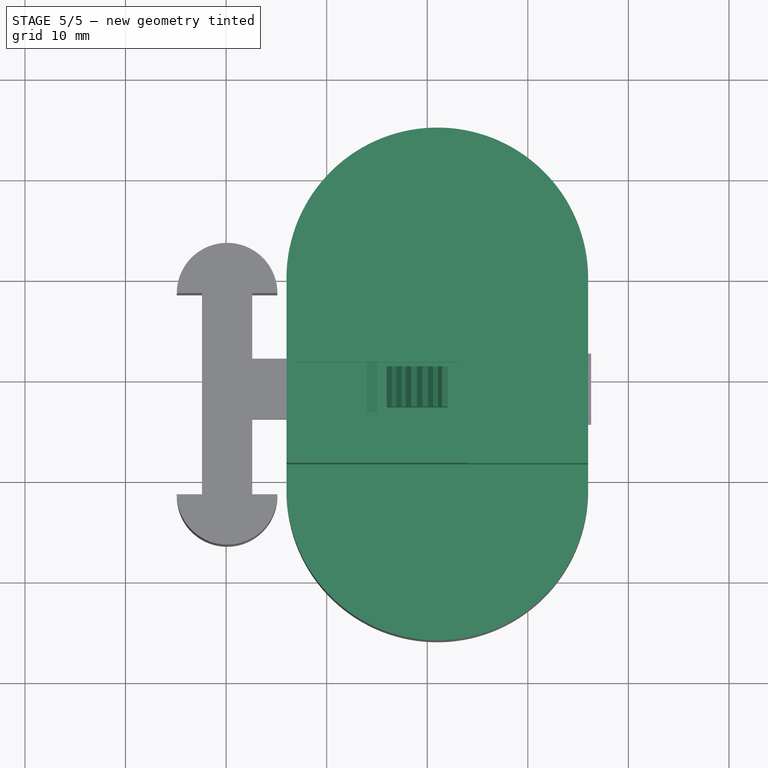
[diagram: stage 5 of 5 — top view after this stage's code; geometry added in this stage tinted green]
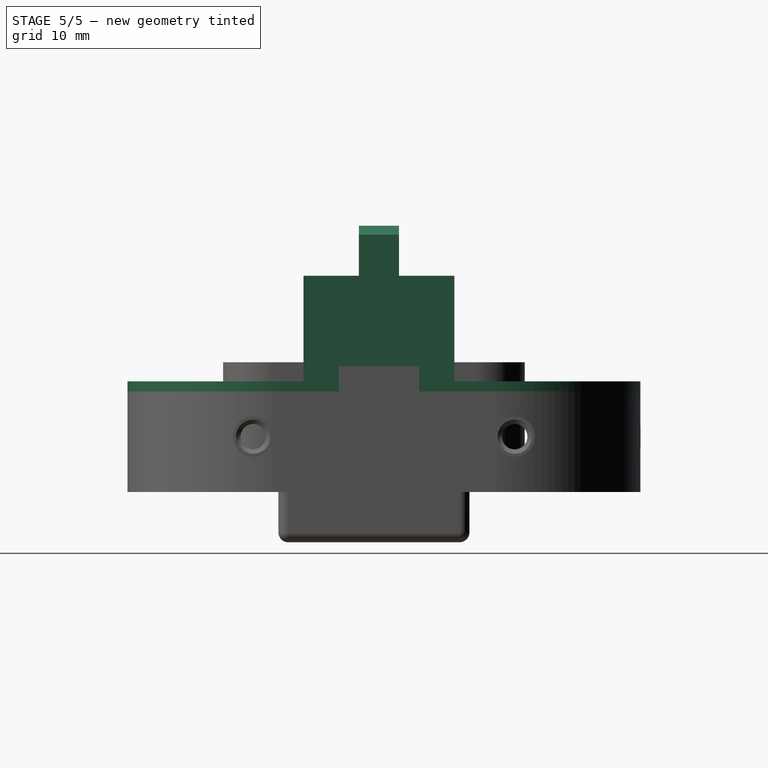
[diagram: stage 5 of 5 — right view after this stage's code; geometry added in this stage tinted green]
FEATURE [Part::Cylinder] Cylinder004  label="Cilindro004"
  Angle = 180
  Height = 1
  Placement = pos=(1,0,0) rot=(0,0,1;0rad)
  Radius = 15
FEATURE [Part::Cylinder] Cylinder005  label="Cilindro005"
  Angle = 180
  Height = 1
  Placement = pos=(1,-21,1) rot=(1,0,0;3.14159rad)
  Radius = 15
FEATURE [Part::Box] Box002  label="Cubo002"
  Height = 1
  Length = 30
  Placement = pos=(-14,-21,0) rot=(0,0,1;0rad)
  Width = 21
FEATURE [Part::Box] Box003  label="Cubo003"
  Height = 7.5
  Length = 30
  Placement = pos=(-14,-18.5,0) rot=(0,0,1;0rad)
  Width = 15
FEATURE [Part::Box] Box004  label="Cubo004"
  Height = 2.5
  Length = 30
  Placement = pos=(-14,-15,0) rot=(0,0,1;0rad)
  Width = 8
FEATURE [Part::MultiFuse] Fusion001
  Shapes = -> [Box002,Box003]
FEATURE [Part::Box] Box035  label="Cubo035"
  Height = 2
  Length = 8
  Placement = pos=(-13,-15,6) rot=(0,0,1;0rad)
  Width = 8
FEATURE [Part::Chamfer] Chamfer
  Base = -> Box035
  Edges = 1 edges r=1: [Edge2]
  Placement = pos=(-18,-22,0.5) rot=(0,0,1;3.14159rad)
FEATURE [Part::Box] Box036  label="Cubo036"
  Height = 4
  Length = 3
  Placement = pos=(-13,-15,2.5) rot=(0,0,1;0rad)
  Width = 8
FEATURE [Part::Cut] Cut006
  Base = -> Fusion001
  Tool = -> Box004
FEATURE [Part::MultiFuse] Fusion002021
  Shapes = -> [Chamfer,Box036]
FEATURE [Part::Box] Box037  label="Cubo037"
  Height = 2
  Length = 8
  Placement = pos=(-13,-15,6) rot=(0,0,1;0rad)
  Width = 8
FEATURE [Part::Chamfer] Chamfer001
  Base = -> Box037
  Edges = 1 edges r=1: [Edge2]
  Placement = pos=(-18,-22,0.5) rot=(0,0,1;3.14159rad)
FEATURE [Part::Box] Box038  label="Cubo038"
  Height = 4
  Length = 3
  Placement = pos=(-13,-15,2.5) rot=(0,0,1;0rad)
  Width = 8
FEATURE [Part::MultiFuse] Fusion002023
  Shapes = -> [Chamfer001,Box038]
FEATURE [Part::Cut] Cut059
  Base = -> Cut006
  Tool = -> Fusion002023
FEATURE [Part::Box] Box051  label="Cubo051"
  Height = 4
  Length = 18
  Width = 15
FEATURE [Part::Box] Box052  label="Cubo052"
  Height = 3
  Length = 16
  Placement = pos=(1,1,1) rot=(0,0,1;0rad)
  Width = 13
FEATURE [Part::Cut] Cut073
  Base = -> Box051
  Tool = -> Box052
FEATURE [Part::Box] Box053  label="Cubo053"
  Height = 10
  Length = 16
  Placement = pos=(1,5,-5) rot=(0,0,1;0rad)
  Width = 5
FEATURE [Part::Cut] Cut074
  Base = -> Cut073
  Tool = -> Box053
FEATURE [Part::Box] Box054  label="Cubo054"
  Height = 2.8
  Length = 8
  Placement = pos=(8,1.5,1) rot=(0,0,1;0rad)
  Width = 12
FEATURE [Part::Box] Box055  label="Cubo055"
  Height = 5
  Length = 6
  Placement = pos=(2,-4,-4) rot=(0,0,1;0rad)
  Width = 4
FEATURE [Part::Chamfer] Chamfer002
  Base = -> Box054
  Edges = 1 edges r=1: [Edge2]
  Placement = pos=(1,0,0) rot=(0,0,1;0rad)
FEATURE [Part::MultiFuse] Fusion002029
  Placement = pos=(8,9.5,0) rot=(0,0,1;0rad)
  Shapes = -> [Box055,Pad]
FEATURE [Part::MultiFuse] Fusion002030
  Placement = pos=(-14,-3.5,11.5) rot=(1,0,0;3.14159rad)
  Shapes = -> [Chamfer002,Fusion002029,Cut074]
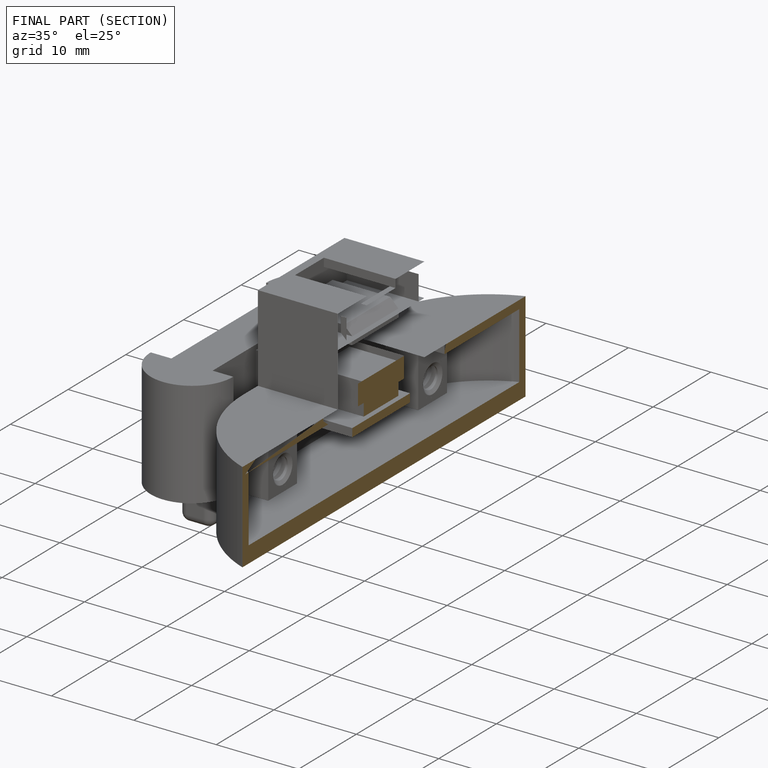
[diagram: finished part — half-section view (interior)]
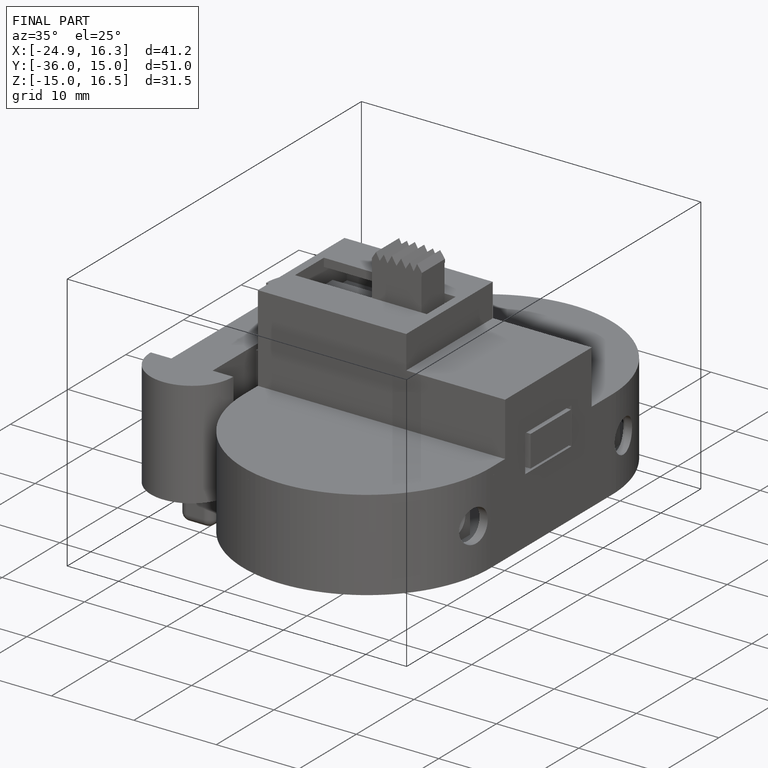
[diagram: finished part — iso view with bounding-box wireframe]
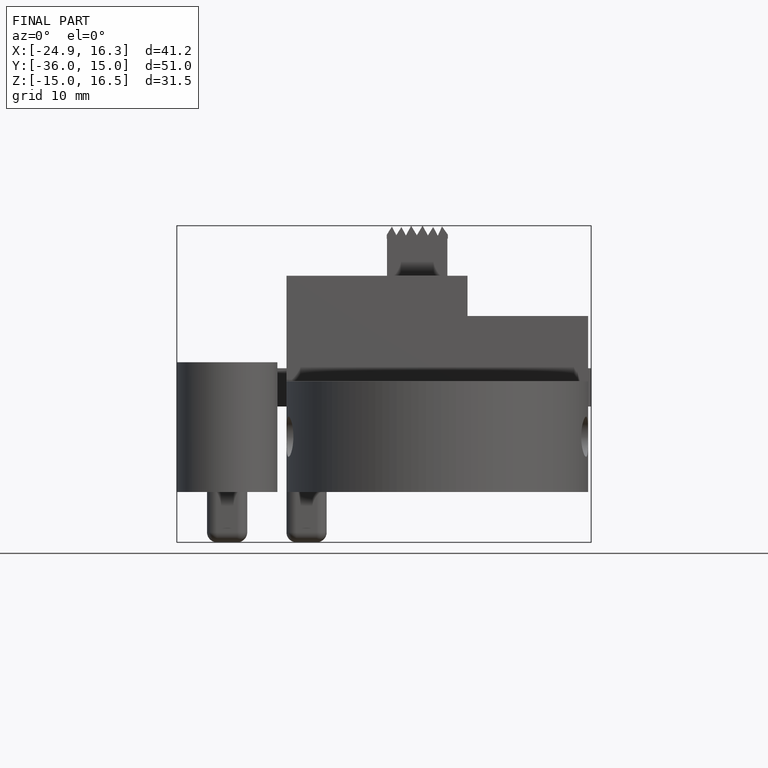
[diagram: finished part — front view with bounding-box wireframe]
